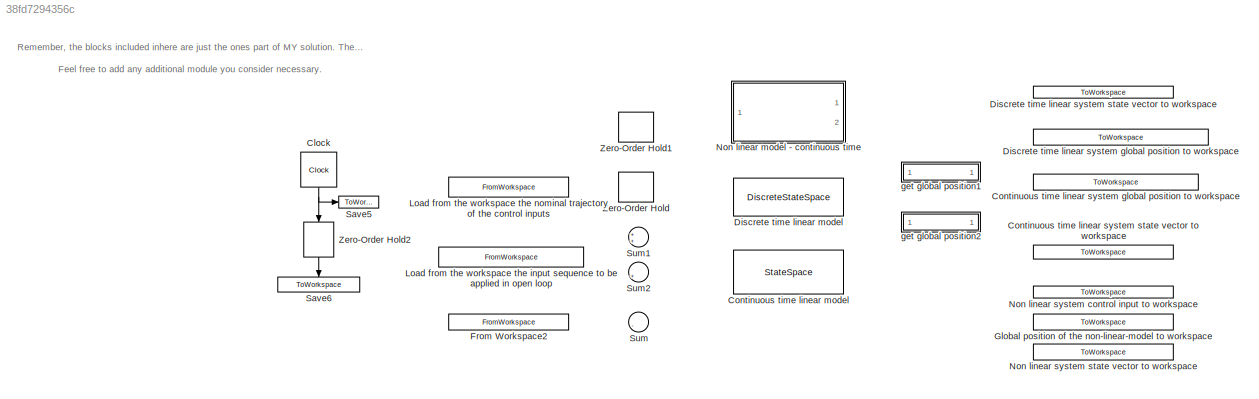
MODEL slx_38fd7294356c
KIND model
CONFIG AbsTol = auto
CONFIG EnableMultiTasking = on
CONFIG FixedStep = auto
CONFIG MaxStep = 0.01
CONFIG MinStep = auto
CONFIG RelTol = 1e-3
CONFIG SampleTimeConstraint = Unconstrained
CONFIG Solver = ode45
CONFIG SolverName = ode45
CONFIG StartTime = 0.0
CONFIG StopTime = simulation_time
BLOCK [ToWorkspace]  Discrete time linear system state vector to workspace
  MaxDataPoints = inf
  Ports = [1]
  SampleTime = -1
  VariableName = discrete_linear_model_y
BLOCK [Clock] Clock
  DisplayTime = on
BLOCK [StateSpace] Continuous time linear model
  A = A
  B = B
  C = C
  D = D
  InitialCondition = x0_tild
  Ports = [1, 1]
BLOCK [ToWorkspace] Continuous time linear system global position to workspace
  MaxDataPoints = inf
  Ports = [1]
  SampleTime = -1
  VariableName = continuous_linear_model_global_position
BLOCK [ToWorkspace] Continuous time linear system state vector to workspace
  MaxDataPoints = inf
  Ports = [1]
  SampleTime = -1
  VariableName = continuous_linear_model_y
BLOCK [DiscreteStateSpace] Discrete time linear model
  A = Phi
  B = Gam
  C = C
  D = D
  InitialCondition = x0_tild
  SampleTime = sampling_time
BLOCK [ToWorkspace] Discrete time linear system global position to workspace
  MaxDataPoints = inf
  Ports = [1]
  SampleTime = -1
  VariableName = discrete_linear_model_global_position
BLOCK [FromWorkspace] From Workspace2
  Interpolate = off
  OutputAfterFinalValue = Holding final value
  SampleTime = sampling_time
  VariableName = nominal_trajectory_x
  ZeroCross = on
BLOCK [ToWorkspace] Global position of the non-linear-model to workspace
  MaxDataPoints = inf
  Ports = [1]
  SampleTime = -1
  VariableName = continuous_non_linear_model_global_position
BLOCK [FromWorkspace] Load from the workspace the input sequence to be applied in open loop
  SampleTime = sampling_time
  VariableName = input_sequence
  ZeroCross = on
BLOCK [FromWorkspace] Load from the workspace the nominal trajectory of the control inputs
  Interpolate = off
  OutputAfterFinalValue = Holding final value
  SampleTime = sampling_time
  VariableName = nominal_trajectory_u
  ZeroCross = on
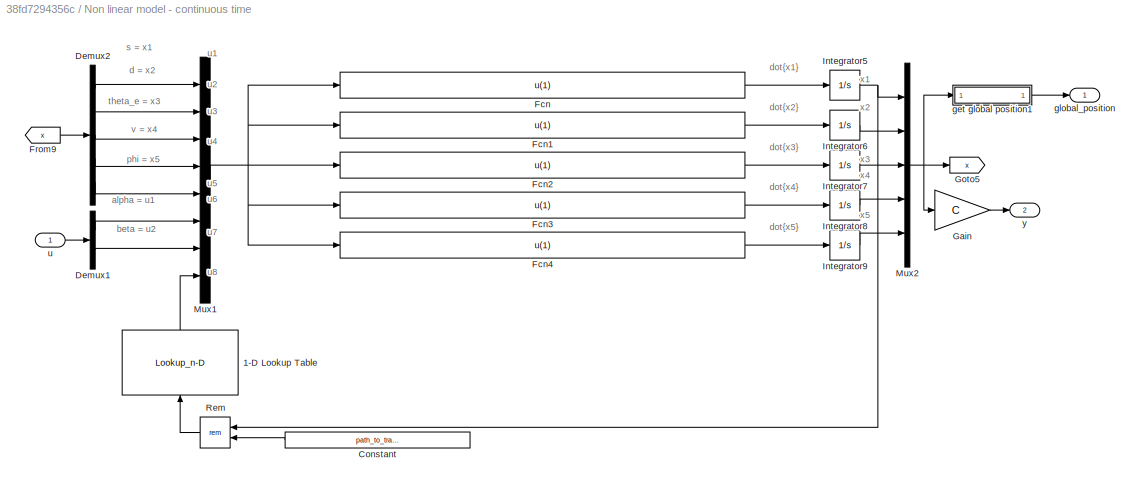
BLOCK [SubSystem] Non linear model - continuous time
  Ports = [1, 2]
  RequestExecContextInheritance = off
BLOCK [Lookup_n-D] Non linear model - continuous time/1-D Lookup Table
  BreakpointsForDimension1 = path_to_track.s_coordinate
  InternalRulePriority = Speed
  NumberOfTableDimensions = 1
  Ports = [1, 1]
  RndMeth = Simplest
  Table = path_to_track.curvature
BLOCK [Constant] Non linear model - continuous time/Constant
  Value = path_to_track.s_coordinate(end)
BLOCK [Demux] Non linear model - continuous time/Demux1
  DisplayOption = bar
  Outputs = 2
  Ports = [1, 2]
BLOCK [Demux] Non linear model - continuous time/Demux2
  DisplayOption = bar
  Outputs = 5
  Ports = [1, 5]
BLOCK [Fcn] Non linear model - continuous time/Fcn
  Expr = u(1)
BLOCK [Fcn] Non linear model - continuous time/Fcn1
  Expr = u(1)
BLOCK [Fcn] Non linear model - continuous time/Fcn2
  Expr = u(1)
BLOCK [Fcn] Non linear model - continuous time/Fcn3
  Expr = u(1)
BLOCK [Fcn] Non linear model - continuous time/Fcn4
  Expr = u(1)
BLOCK [From] Non linear model - continuous time/From9
  GotoTag = x
BLOCK [Gain] Non linear model - continuous time/Gain
  Gain = C
  Multiplication = Matrix(K*u)
  OutDataTypeStr = Inherit: Inherit via internal rule
  ParamDataTypeStr = Inherit: Inherit via internal rule
  SaturateOnIntegerOverflow = off
BLOCK [Goto] Non linear model - continuous time/Goto5
  GotoTag = x
BLOCK [Integrator] Non linear model - continuous time/Integrator5
  InitialCondition = x0(1)
  Ports = [1, 1]
BLOCK [Integrator] Non linear model - continuous time/Integrator6
  InitialCondition = x0(2)
  Ports = [1, 1]
BLOCK [Integrator] Non linear model - continuous time/Integrator7
  InitialCondition = x0(3)
  Ports = [1, 1]
BLOCK [Integrator] Non linear model - continuous time/Integrator8
  InitialCondition = x0(4)
  Ports = [1, 1]
BLOCK [Integrator] Non linear model - continuous time/Integrator9
  InitialCondition = x0(5)
  Ports = [1, 1]
BLOCK [Mux] Non linear model - continuous time/Mux1
  DisplayOption = bar
  Inputs = 8
  Ports = [8, 1]
BLOCK [Mux] Non linear model - continuous time/Mux2
  DisplayOption = bar
  Inputs = 5
  Ports = [5, 1]
BLOCK [Math] Non linear model - continuous time/Rem
  Operator = rem
  Ports = [2, 1]
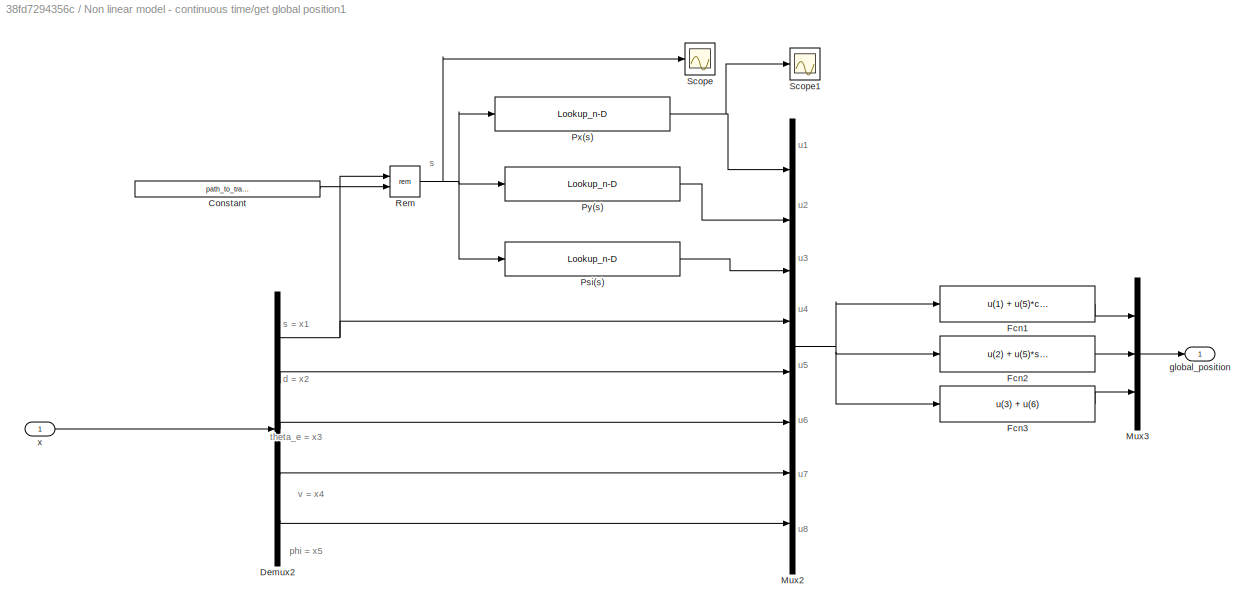
BLOCK [SubSystem] Non linear model - continuous time/get global position1
  Ports = [1, 1]
  RequestExecContextInheritance = off
BLOCK [Constant] Non linear model - continuous time/get global position1/Constant
  Value = path_to_track.s_coordinate(end)
BLOCK [Demux] Non linear model - continuous time/get global position1/Demux2
  DisplayOption = bar
  Outputs = 5
  Ports = [1, 5]
BLOCK [Fcn] Non linear model - continuous time/get global position1/Fcn1
  Expr = u(1) + u(5)*cos(u(3) + pi/2)
BLOCK [Fcn] Non linear model - continuous time/get global position1/Fcn2
  Expr = u(2) + u(5)*sin(u(3) + pi/2)
BLOCK [Fcn] Non linear model - continuous time/get global position1/Fcn3
  Expr = u(3) + u(6)
BLOCK [Mux] Non linear model - continuous time/get global position1/Mux2
  DisplayOption = bar
  Inputs = 8
  Ports = [8, 1]
BLOCK [Mux] Non linear model - continuous time/get global position1/Mux3
  DisplayOption = bar
  Inputs = 3
  Ports = [3, 1]
BLOCK [Lookup_n-D] Non linear model - continuous time/get global position1/Psi(s)
  BreakpointsForDimension1 = path_to_track.s_coordinate
  InternalRulePriority = Speed
  NumberOfTableDimensions = 1
  Ports = [1, 1]
  RndMeth = Simplest
  Table = path_to_track.orientation
BLOCK [Lookup_n-D] Non linear model - continuous time/get global position1/Px(s)
  BreakpointsForDimension1 = path_to_track.s_coordinate
  InternalRulePriority = Speed
  NumberOfTableDimensions = 1
  Ports = [1, 1]
  RndMeth = Simplest
  Table = path_to_track.coordinates(:,1)
BLOCK [Lookup_n-D] Non linear model - continuous time/get global position1/Py(s)
  BreakpointsForDimension1 = path_to_track.s_coordinate
  InternalRulePriority = Speed
  NumberOfTableDimensions = 1
  Ports = [1, 1]
  RndMeth = Simplest
  Table = path_to_track.coordinates(:,2)
BLOCK [Math] Non linear model - continuous time/get global position1/Rem
  Operator = rem
  Ports = [2, 1]
BLOCK [Scope] Non linear model - continuous time/get global position1/Scope
  Floating = off
  NumInputPorts = 1
  Ports = [1]
  ScopeSpecificationString = Simulink.scopes.TimeScopeBlockCfg('CurrentConfiguration', extmgr.ConfigurationSet(extmgr.Configuration('Core','General UI',true),extmgr.Configuration('Core','Source UI',true),extmgr.Configuration('Sources','WiredSimulink',true),extmgr.Configuration('Visuals','Time Domain',true,'SerializedDisplays',{struct('MinYLimReal','-23.49215','MaxYLimReal','211.42937','YLabelReal','','MinYLimMag','0.00000','M...<+1363ch>  <repeated x3 — deduplicated; at blocks: Scope>
BLOCK [Scope] Non linear model - continuous time/get global position1/Scope1
  Floating = off
  NumInputPorts = 1
  Ports = [1]
  ScopeSpecificationString = Simulink.scopes.TimeScopeBlockCfg('CurrentConfiguration', extmgr.ConfigurationSet(extmgr.Configuration('Core','General UI',true),extmgr.Configuration('Core','Source UI',true),extmgr.Configuration('Sources','WiredSimulink',true,'DataLoggingVariableName','ScopeData1'),extmgr.Configuration('Visuals','Time Domain',true,'SerializedDisplays',{struct('MinYLimReal','-38.79002','MaxYLimReal','59.75286','YL...<+1400ch>  <repeated x3 — deduplicated; at blocks: Scope1>
BLOCK [Outport] Non linear model - continuous time/get global position1/global_position
  IconDisplay = Port number
BLOCK [Inport] Non linear model - continuous time/get global position1/x
  IconDisplay = Port number
BLOCK [Outport] Non linear model - continuous time/global_position
  IconDisplay = Port number
BLOCK [Inport] Non linear model - continuous time/u
  IconDisplay = Port number
BLOCK [Outport] Non linear model - continuous time/y
  IconDisplay = Port number
  Port = 2
BLOCK [ToWorkspace] Non linear system control input to workspace
  MaxDataPoints = inf
  Ports = [1]
  SampleTime = -1
  VariableName = open_loop_u
BLOCK [ToWorkspace] Non linear system state vector to workspace
  MaxDataPoints = inf
  Ports = [1]
  SampleTime = -1
  VariableName = continuous_non_linear_model_y
BLOCK [ToWorkspace] Save5
  MaxDataPoints = inf
  Ports = [1]
  SampleTime = -1
  VariableName = time
BLOCK [ToWorkspace] Save6
  MaxDataPoints = inf
  Ports = [1]
  SampleTime = -1
  VariableName = discrete_time
BLOCK [Sum] Sum
  IconShape = round
  InputSameDT = off
  Inputs = |-+
  OutDataTypeStr = Inherit: Inherit via internal rule
  Ports = [2, 1]
  SaturateOnIntegerOverflow = off
BLOCK [Sum] Sum1
  IconShape = round
  InputSameDT = off
  Inputs = ++|
  OutDataTypeStr = Inherit: Inherit via internal rule
  Ports = [2, 1]
  SaturateOnIntegerOverflow = off
BLOCK [Sum] Sum2
  IconShape = round
  InputSameDT = off
  Inputs = |++
  OutDataTypeStr = Inherit: Inherit via internal rule
  Ports = [2, 1]
  SaturateOnIntegerOverflow = off
BLOCK [ZeroOrderHold] Zero-Order Hold
  SampleTime = sampling_time
BLOCK [ZeroOrderHold] Zero-Order Hold1
  SampleTime = sampling_time
BLOCK [ZeroOrderHold] Zero-Order Hold2
  SampleTime = sampling_time
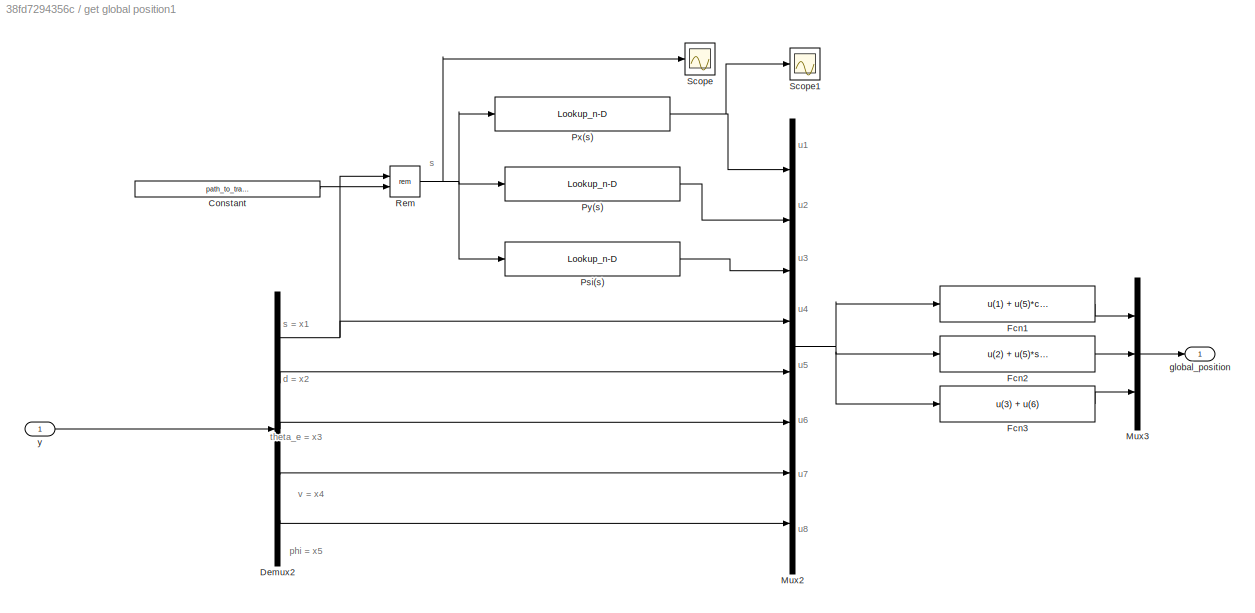
BLOCK [SubSystem] get global position1
  Ports = [1, 1]
  RequestExecContextInheritance = off
BLOCK [Constant] get global position1/Constant
  Value = path_to_track.s_coordinate(end)
BLOCK [Demux] get global position1/Demux2
  DisplayOption = bar
  Outputs = 5
  Ports = [1, 5]
BLOCK [Fcn] get global position1/Fcn1
  Expr = u(1) + u(5)*cos(u(3) + pi/2)
BLOCK [Fcn] get global position1/Fcn2
  Expr = u(2) + u(5)*sin(u(3) + pi/2)
BLOCK [Fcn] get global position1/Fcn3
  Expr = u(3) + u(6)
BLOCK [Mux] get global position1/Mux2
  DisplayOption = bar
  Inputs = 8
  Ports = [8, 1]
BLOCK [Mux] get global position1/Mux3
  DisplayOption = bar
  Inputs = 3
  Ports = [3, 1]
BLOCK [Lookup_n-D] get global position1/Psi(s)
  BreakpointsForDimension1 = path_to_track.s_coordinate
  InternalRulePriority = Speed
  NumberOfTableDimensions = 1
  Ports = [1, 1]
  RndMeth = Simplest
  Table = path_to_track.orientation
BLOCK [Lookup_n-D] get global position1/Px(s)
  BreakpointsForDimension1 = path_to_track.s_coordinate
  InternalRulePriority = Speed
  NumberOfTableDimensions = 1
  Ports = [1, 1]
  RndMeth = Simplest
  Table = path_to_track.coordinates(:,1)
BLOCK [Lookup_n-D] get global position1/Py(s)
  BreakpointsForDimension1 = path_to_track.s_coordinate
  InternalRulePriority = Speed
  NumberOfTableDimensions = 1
  Ports = [1, 1]
  RndMeth = Simplest
  Table = path_to_track.coordinates(:,2)
BLOCK [Math] get global position1/Rem
  Operator = rem
  Ports = [2, 1]
BLOCK [Scope] get global position1/Scope
  Floating = off
  NumInputPorts = 1
  Ports = [1]
BLOCK [Scope] get global position1/Scope1
  Floating = off
  NumInputPorts = 1
  Ports = [1]
BLOCK [Outport] get global position1/global_position
  IconDisplay = Port number
BLOCK [Inport] get global position1/y
  IconDisplay = Port number
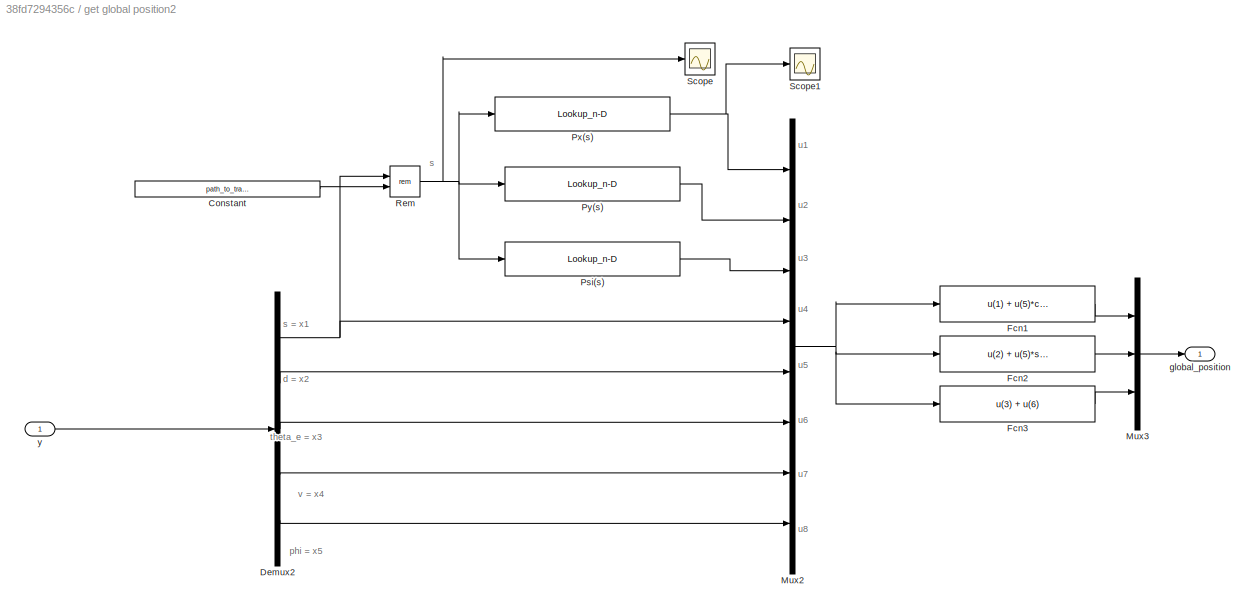
BLOCK [SubSystem] get global position2
  Ports = [1, 1]
  RequestExecContextInheritance = off
BLOCK [Constant] get global position2/Constant
  Value = path_to_track.s_coordinate(end)
BLOCK [Demux] get global position2/Demux2
  DisplayOption = bar
  Outputs = 5
  Ports = [1, 5]
BLOCK [Fcn] get global position2/Fcn1
  Expr = u(1) + u(5)*cos(u(3) + pi/2)
BLOCK [Fcn] get global position2/Fcn2
  Expr = u(2) + u(5)*sin(u(3) + pi/2)
BLOCK [Fcn] get global position2/Fcn3
  Expr = u(3) + u(6)
BLOCK [Mux] get global position2/Mux2
  DisplayOption = bar
  Inputs = 8
  Ports = [8, 1]
BLOCK [Mux] get global position2/Mux3
  DisplayOption = bar
  Inputs = 3
  Ports = [3, 1]
BLOCK [Lookup_n-D] get global position2/Psi(s)
  BreakpointsForDimension1 = path_to_track.s_coordinate
  InternalRulePriority = Speed
  NumberOfTableDimensions = 1
  Ports = [1, 1]
  RndMeth = Simplest
  Table = path_to_track.orientation
BLOCK [Lookup_n-D] get global position2/Px(s)
  BreakpointsForDimension1 = path_to_track.s_coordinate
  InternalRulePriority = Speed
  NumberOfTableDimensions = 1
  Ports = [1, 1]
  RndMeth = Simplest
  Table = path_to_track.coordinates(:,1)
BLOCK [Lookup_n-D] get global position2/Py(s)
  BreakpointsForDimension1 = path_to_track.s_coordinate
  InternalRulePriority = Speed
  NumberOfTableDimensions = 1
  Ports = [1, 1]
  RndMeth = Simplest
  Table = path_to_track.coordinates(:,2)
BLOCK [Math] get global position2/Rem
  Operator = rem
  Ports = [2, 1]
BLOCK [Scope] get global position2/Scope
  Floating = off
  NumInputPorts = 1
  Ports = [1]
BLOCK [Scope] get global position2/Scope1
  Floating = off
  NumInputPorts = 1
  Ports = [1]
BLOCK [Outport] get global position2/global_position
  IconDisplay = Port number
BLOCK [Inport] get global position2/y
  IconDisplay = Port number
ANNOTATION (root): Remember, the blocks included inhere are just the ones part of MY solution. The essencial modules should most probably remain as they are while auxiliary modules like "sum", "mux" and "demux" modules might vary depending on your specific implementation. Feel free to add any additional module you consider necessary.
ANNOTATION Non linear model - continuous time: alpha = u1
ANNOTATION Non linear model - continuous time: beta = u2
ANNOTATION Non linear model - continuous time: d = x2
ANNOTATION Non linear model - continuous time: dot{x1}
ANNOTATION Non linear model - continuous time: dot{x2}
ANNOTATION Non linear model - continuous time: dot{x3}
ANNOTATION Non linear model - continuous time: dot{x4}
ANNOTATION Non linear model - continuous time: dot{x5}
ANNOTATION Non linear model - continuous time: phi = x5
ANNOTATION Non linear model - continuous time: s = x1
ANNOTATION Non linear model - continuous time: theta_e = x3
ANNOTATION Non linear model - continuous time: u1
ANNOTATION Non linear model - continuous time: u2
ANNOTATION Non linear model - continuous time: u3
ANNOTATION Non linear model - continuous time: u4
ANNOTATION Non linear model - continuous time: u5
ANNOTATION Non linear model - continuous time: u6
ANNOTATION Non linear model - continuous time: u7
ANNOTATION Non linear model - continuous time: u8
ANNOTATION Non linear model - continuous time: v = x4
ANNOTATION Non linear model - continuous time: x1
ANNOTATION Non linear model - continuous time: x2
ANNOTATION Non linear model - continuous time: x3
ANNOTATION Non linear model - continuous time: x4
ANNOTATION Non linear model - continuous time: x5
ANNOTATION Non linear model - continuous time/get global position1: d = x2
ANNOTATION Non linear model - continuous time/get global position1: phi = x5
ANNOTATION Non linear model - continuous time/get global position1: s
ANNOTATION Non linear model - continuous time/get global position1: s = x1
ANNOTATION Non linear model - continuous time/get global position1: theta_e = x3
ANNOTATION Non linear model - continuous time/get global position1: u1
ANNOTATION Non linear model - continuous time/get global position1: u2
ANNOTATION Non linear model - continuous time/get global position1: u3
ANNOTATION Non linear model - continuous time/get global position1: u4
ANNOTATION Non linear model - continuous time/get global position1: u5
ANNOTATION Non linear model - continuous time/get global position1: u6
ANNOTATION Non linear model - continuous time/get global position1: u7
ANNOTATION Non linear model - continuous time/get global position1: u8
ANNOTATION Non linear model - continuous time/get global position1: v = x4
ANNOTATION get global position1: d = x2
ANNOTATION get global position1: phi = x5
ANNOTATION get global position1: s
ANNOTATION get global position1: s = x1
ANNOTATION get global position1: theta_e = x3
ANNOTATION get global position1: u1
ANNOTATION get global position1: u2
ANNOTATION get global position1: u3
ANNOTATION get global position1: u4
ANNOTATION get global position1: u5
ANNOTATION get global position1: u6
ANNOTATION get global position1: u7
ANNOTATION get global position1: u8
ANNOTATION get global position1: v = x4
ANNOTATION get global position2: d = x2
ANNOTATION get global position2: phi = x5
ANNOTATION get global position2: s
ANNOTATION get global position2: s = x1
ANNOTATION get global position2: theta_e = x3
ANNOTATION get global position2: u1
ANNOTATION get global position2: u2
ANNOTATION get global position2: u3
ANNOTATION get global position2: u4
ANNOTATION get global position2: u5
ANNOTATION get global position2: u6
ANNOTATION get global position2: u7
ANNOTATION get global position2: u8
ANNOTATION get global position2: v = x4
NET Clock:1 -> Save5:1, Zero-Order Hold2:1
LINE Non linear model - continuous time/1-D Lookup Table:1 -> Non linear model - continuous time/Mux1:8
LINE Non linear model - continuous time/Constant:1 -> Non linear model - continuous time/Rem:2
LINE Non linear model - continuous time/Demux1:1 -> Non linear model - continuous time/Mux1:6
LINE Non linear model - continuous time/Demux1:2 -> Non linear model - continuous time/Mux1:7
LINE Non linear model - continuous time/Demux2:1 -> Non linear model - continuous time/Mux1:1
LINE Non linear model - continuous time/Demux2:2 -> Non linear model - continuous time/Mux1:2
LINE Non linear model - continuous time/Demux2:3 -> Non linear model - continuous time/Mux1:3
LINE Non linear model - continuous time/Demux2:4 -> Non linear model - continuous time/Mux1:4
LINE Non linear model - continuous time/Demux2:5 -> Non linear model - continuous time/Mux1:5
LINE Non linear model - continuous time/Fcn1:1 -> Non linear model - continuous time/Integrator6:1
LINE Non linear model - continuous time/Fcn2:1 -> Non linear model - continuous time/Integrator7:1
LINE Non linear model - continuous time/Fcn3:1 -> Non linear model - continuous time/Integrator8:1
LINE Non linear model - continuous time/Fcn4:1 -> Non linear model - continuous time/Integrator9:1
LINE Non linear model - continuous time/Fcn:1 -> Non linear model - continuous time/Integrator5:1
LINE Non linear model - continuous time/From9:1 -> Non linear model - continuous time/Demux2:1
LINE Non linear model - continuous time/Gain:1 -> Non linear model - continuous time/y:1
NET Non linear model - continuous time/Integrator5:1 -> Non linear model - continuous time/Mux2:1, Non linear model - continuous time/Rem:1
LINE Non linear model - continuous time/Integrator6:1 -> Non linear model - continuous time/Mux2:2
LINE Non linear model - continuous time/Integrator7:1 -> Non linear model - continuous time/Mux2:3
LINE Non linear model - continuous time/Integrator8:1 -> Non linear model - continuous time/Mux2:4
LINE Non linear model - continuous time/Integrator9:1 -> Non linear model - continuous time/Mux2:5
NET Non linear model - continuous time/Mux1:1 -> Non linear model - continuous time/Fcn1:1, Non linear model - continuous time/Fcn2:1, Non linear model - continuous time/Fcn3:1, Non linear model - continuous time/Fcn4:1, Non linear model - continuous time/Fcn:1
NET Non linear model - continuous time/Mux2:1 -> Non linear model - continuous time/Gain:1, Non linear model - continuous time/Goto5:1, Non linear model - continuous time/get global position1:1
LINE Non linear model - continuous time/Rem:1 -> Non linear model - continuous time/1-D Lookup Table:1
LINE Non linear model - continuous time/get global position1/Constant:1 -> Non linear model - continuous time/get global position1/Rem:2
NET Non linear model - continuous time/get global position1/Demux2:1 -> Non linear model - continuous time/get global position1/Mux2:4, Non linear model - continuous time/get global position1/Rem:1
LINE Non linear model - continuous time/get global position1/Demux2:2 -> Non linear model - continuous time/get global position1/Mux2:5
LINE Non linear model - continuous time/get global position1/Demux2:3 -> Non linear model - continuous time/get global position1/Mux2:6
LINE Non linear model - continuous time/get global position1/Demux2:4 -> Non linear model - continuous time/get global position1/Mux2:7
LINE Non linear model - continuous time/get global position1/Demux2:5 -> Non linear model - continuous time/get global position1/Mux2:8
LINE Non linear model - continuous time/get global position1/Fcn1:1 -> Non linear model - continuous time/get global position1/Mux3:1
LINE Non linear model - continuous time/get global position1/Fcn2:1 -> Non linear model - continuous time/get global position1/Mux3:2
LINE Non linear model - continuous time/get global position1/Fcn3:1 -> Non linear model - continuous time/get global position1/Mux3:3
NET Non linear model - continuous time/get global position1/Mux2:1 -> Non linear model - continuous time/get global position1/Fcn1:1, Non linear model - continuous time/get global position1/Fcn2:1, Non linear model - continuous time/get global position1/Fcn3:1
LINE Non linear model - continuous time/get global position1/Mux3:1 -> Non linear model - continuous time/get global position1/global_position:1
LINE Non linear model - continuous time/get global position1/Psi(s):1 -> Non linear model - continuous time/get global position1/Mux2:3
NET Non linear model - continuous time/get global position1/Px(s):1 -> Non linear model - continuous time/get global position1/Mux2:1, Non linear model - continuous time/get global position1/Scope1:1
LINE Non linear model - continuous time/get global position1/Py(s):1 -> Non linear model - continuous time/get global position1/Mux2:2
NET Non linear model - continuous time/get global position1/Rem:1 -> Non linear model - continuous time/get global position1/Psi(s):1, Non linear model - continuous time/get global position1/Px(s):1, Non linear model - continuous time/get global position1/Py(s):1, Non linear model - continuous time/get global position1/Scope:1
LINE Non linear model - continuous time/get global position1/x:1 -> Non linear model - continuous time/get global position1/Demux2:1
LINE Non linear model - continuous time/get global position1:1 -> Non linear model - continuous time/global_position:1
LINE Non linear model - continuous time/u:1 -> Non linear model - continuous time/Demux1:1
LINE Zero-Order Hold2:1 -> Save6:1
LINE get global position1/Constant:1 -> get global position1/Rem:2
NET get global position1/Demux2:1 -> get global position1/Mux2:4, get global position1/Rem:1
LINE get global position1/Demux2:2 -> get global position1/Mux2:5
LINE get global position1/Demux2:3 -> get global position1/Mux2:6
LINE get global position1/Demux2:4 -> get global position1/Mux2:7
LINE get global position1/Demux2:5 -> get global position1/Mux2:8
LINE get global position1/Fcn1:1 -> get global position1/Mux3:1
LINE get global position1/Fcn2:1 -> get global position1/Mux3:2
LINE get global position1/Fcn3:1 -> get global position1/Mux3:3
NET get global position1/Mux2:1 -> get global position1/Fcn1:1, get global position1/Fcn2:1, get global position1/Fcn3:1
LINE get global position1/Mux3:1 -> get global position1/global_position:1
LINE get global position1/Psi(s):1 -> get global position1/Mux2:3
NET get global position1/Px(s):1 -> get global position1/Mux2:1, get global position1/Scope1:1
LINE get global position1/Py(s):1 -> get global position1/Mux2:2
NET get global position1/Rem:1 -> get global position1/Psi(s):1, get global position1/Px(s):1, get global position1/Py(s):1, get global position1/Scope:1
LINE get global position1/y:1 -> get global position1/Demux2:1
LINE get global position2/Constant:1 -> get global position2/Rem:2
NET get global position2/Demux2:1 -> get global position2/Mux2:4, get global position2/Rem:1
LINE get global position2/Demux2:2 -> get global position2/Mux2:5
LINE get global position2/Demux2:3 -> get global position2/Mux2:6
LINE get global position2/Demux2:4 -> get global position2/Mux2:7
LINE get global position2/Demux2:5 -> get global position2/Mux2:8
LINE get global position2/Fcn1:1 -> get global position2/Mux3:1
LINE get global position2/Fcn2:1 -> get global position2/Mux3:2
LINE get global position2/Fcn3:1 -> get global position2/Mux3:3
NET get global position2/Mux2:1 -> get global position2/Fcn1:1, get global position2/Fcn2:1, get global position2/Fcn3:1
LINE get global position2/Mux3:1 -> get global position2/global_position:1
LINE get global position2/Psi(s):1 -> get global position2/Mux2:3
NET get global position2/Px(s):1 -> get global position2/Mux2:1, get global position2/Scope1:1
LINE get global position2/Py(s):1 -> get global position2/Mux2:2
NET get global position2/Rem:1 -> get global position2/Psi(s):1, get global position2/Px(s):1, get global position2/Py(s):1, get global position2/Scope:1
LINE get global position2/y:1 -> get global position2/Demux2:1
note: NET lines group one-source signal fan-out (src -> all destinations, sorted); 1:1 wires keep LINE
